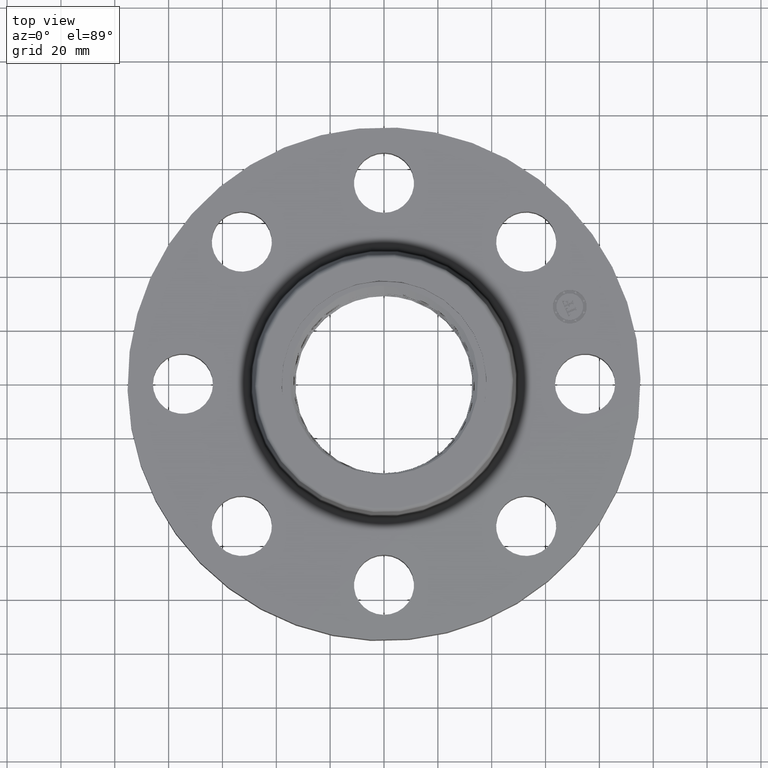
[diagram: clean part render]
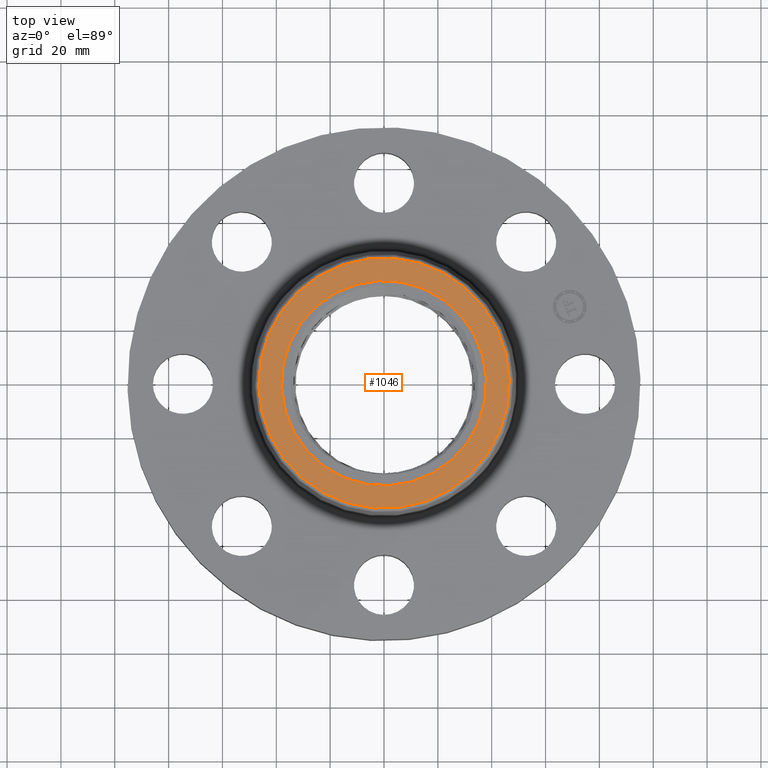
[diagram: same view with one face highlighted and labeled with its STEP entity id]
A machine part, top view. The second image highlights one B-rep face of the part: STEP entity #1046.
In plain terms, the highlighted planar face has unit normal (0, 0, -1).
Its self-contained STEP definition (entity closure, byte-faithful):
#467=AXIS2_PLACEMENT_3D('Circle Axis2P3D',#465,#466,$) ;
#493=AXIS2_PLACEMENT_3D('Circle Axis2P3D',#491,#492,$) ;
#703=AXIS2_PLACEMENT_3D('Circle Axis2P3D',#701,#702,$) ;
#722=AXIS2_PLACEMENT_3D('Circle Axis2P3D',#720,#721,$) ;
#1036=AXIS2_PLACEMENT_3D('Plane Axis2P3D',#1033,#1034,#1035) ;
#465=CARTESIAN_POINT('Axis2P3D Location',(0.,0.,1.44000000001)) ;
#469=CARTESIAN_POINT('Vertex',(0.719138307909,-1.31637384284,1.44000000001)) ;
#471=CARTESIAN_POINT('Vertex',(-0.719138307909,1.31637384284,1.44000000001)) ;
#491=CARTESIAN_POINT('Axis2P3D Location',(0.,0.,1.44000000001)) ;
#698=CARTESIAN_POINT('Vertex',(0.878063334648,1.60728415296,1.44000000001)) ;
#701=CARTESIAN_POINT('Axis2P3D Location',(0.,0.,1.44000000001)) ;
#705=CARTESIAN_POINT('Vertex',(-0.878063334648,-1.60728415296,1.44000000001)) ;
#720=CARTESIAN_POINT('Axis2P3D Location',(0.,0.,1.44000000001)) ;
#1033=CARTESIAN_POINT('Axis2P3D Location',(0.,1.83149053178,1.44000000001)) ;
#466=DIRECTION('Axis2P3D Direction',(0.,0.,0.0393700787402)) ;
#492=DIRECTION('Axis2P3D Direction',(0.,0.,0.0393700787402)) ;
#702=DIRECTION('Axis2P3D Direction',(0.,0.,-0.0393700787402)) ;
#721=DIRECTION('Axis2P3D Direction',(0.,0.,-0.0393700787402)) ;
#1034=DIRECTION('Axis2P3D Direction',(0.,0.,-0.0393700787402)) ;
#1035=DIRECTION('Axis2P3D XDirection',(0.0393700787402,0.,0.)) ;
#1039=ORIENTED_EDGE('',*,*,#707,.F.) ;
#1040=ORIENTED_EDGE('',*,*,#724,.F.) ;
#1043=ORIENTED_EDGE('',*,*,#495,.T.) ;
#1044=ORIENTED_EDGE('',*,*,#473,.T.) ;
#1045=FACE_BOUND('',#1042,.T.) ;
#1046=ADVANCED_FACE('PartBody',(#1041,#1045),#1037,.F.) ;
#468=CIRCLE('generated circle',#467,1.50000000001) ;
#494=CIRCLE('generated circle',#493,1.50000000001) ;
#704=CIRCLE('generated circle',#703,1.83149053178) ;
#723=CIRCLE('generated circle',#722,1.83149053178) ;
#473=EDGE_CURVE('',#470,#472,#468,.F.) ;
#495=EDGE_CURVE('',#472,#470,#494,.F.) ;
#707=EDGE_CURVE('',#699,#706,#704,.T.) ;
#724=EDGE_CURVE('',#706,#699,#723,.T.) ;
#1038=EDGE_LOOP('',(#1039,#1040)) ;
#1042=EDGE_LOOP('',(#1043,#1044)) ;
#1041=FACE_OUTER_BOUND('',#1038,.T.) ;
#1037=PLANE('',#1036) ;
#470=VERTEX_POINT('',#469) ;
#472=VERTEX_POINT('',#471) ;
#699=VERTEX_POINT('',#698) ;
#706=VERTEX_POINT('',#705) ;